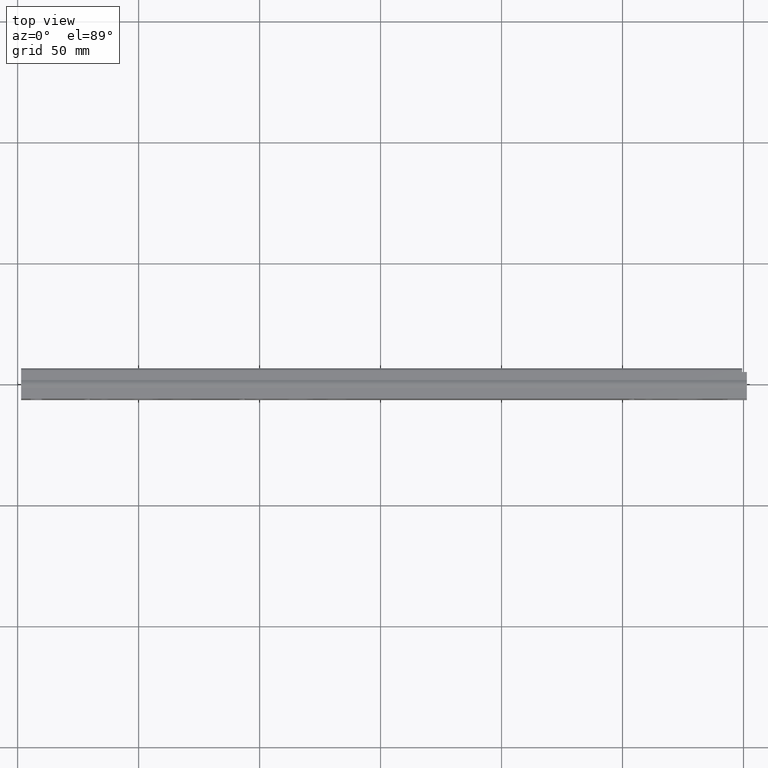
[diagram: clean part render]
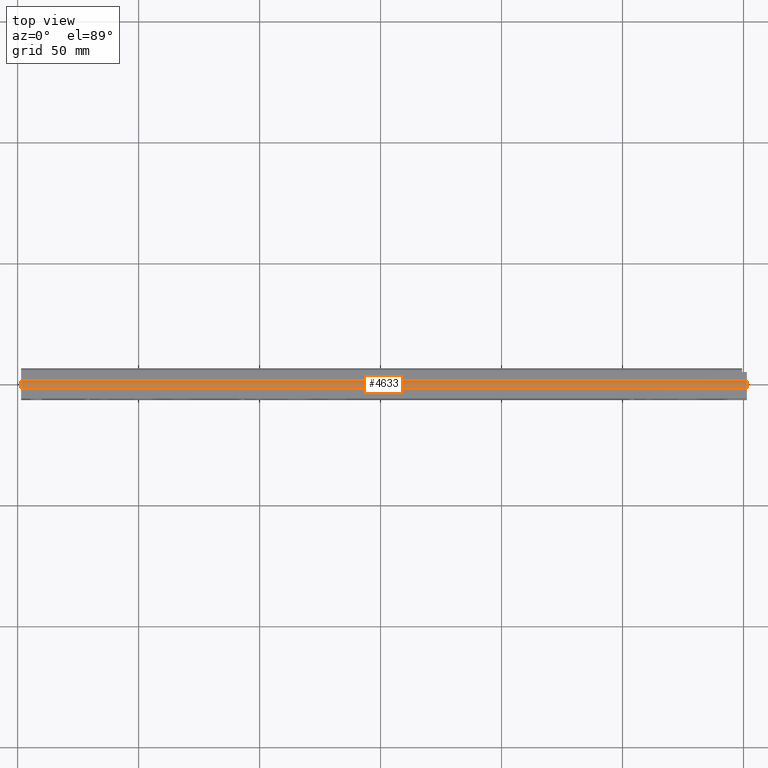
[diagram: same view with one face highlighted and labeled with its STEP entity id]
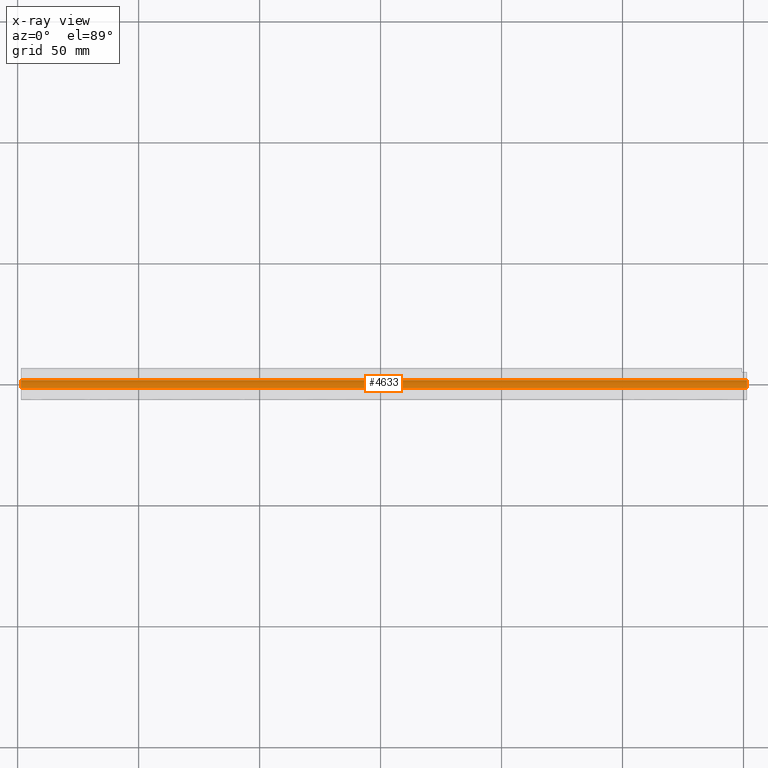
[diagram: x-ray of the same camera — body ghosted, the highlighted face saturated]
A machine part, top view. The second image highlights one B-rep face of the part: STEP entity #4633.
The next image is the same camera in x-ray: the body ghosted, the highlighted face saturated — about 0% of this face is hidden behind the body in this view.
In plain terms, the highlighted cylindrical surface (edge-blend (fillet) strip) has radius 2.9725 mm, axis along (1, 0, 0).
Its self-contained STEP definition (entity closure, byte-faithful):
#93=CYLINDRICAL_SURFACE('',#4964,2.9725);
#308=FACE_OUTER_BOUND('',#581,.T.);
#581=EDGE_LOOP('',(#3624,#3625,#3626,#3627));
#974=LINE('',#7187,#1464);
#975=LINE('',#7189,#1465);
#1464=VECTOR('',#5804,300.);
#1465=VECTOR('',#5807,300.);
#1809=CIRCLE('',#4878,2.9725);
#1814=CIRCLE('',#4961,2.9725);
#2100=VERTEX_POINT('',#6980);
#2101=VERTEX_POINT('',#6982);
#2118=VERTEX_POINT('',#7169);
#2119=VERTEX_POINT('',#7171);
#2573=EDGE_CURVE('',#2100,#2101,#1809,.T.);
#2666=EDGE_CURVE('',#2118,#2119,#1814,.T.);
#2674=EDGE_CURVE('',#2118,#2101,#974,.T.);
#2675=EDGE_CURVE('',#2119,#2100,#975,.T.);
#3624=ORIENTED_EDGE('',*,*,#2674,.T.);
#3625=ORIENTED_EDGE('',*,*,#2573,.F.);
#3626=ORIENTED_EDGE('',*,*,#2675,.F.);
#3627=ORIENTED_EDGE('',*,*,#2666,.F.);
#4633=ADVANCED_FACE('',(#308),#93,.T.);
#4878=AXIS2_PLACEMENT_3D('',#6983,#5538,#5539);
#4961=AXIS2_PLACEMENT_3D('',#7172,#5792,#5793);
#4964=AXIS2_PLACEMENT_3D('',#7188,#5805,#5806);
#5538=DIRECTION('center_axis',(1.,0.,0.));
#5539=DIRECTION('ref_axis',(0.,0.555088309503784,0.83179142136249));
#5792=DIRECTION('center_axis',(-1.,0.,0.));
#5793=DIRECTION('ref_axis',(0.,0.555088309503784,0.83179142136249));
#5804=DIRECTION('',(1.,0.,0.));
#5805=DIRECTION('center_axis',(1.,0.,0.));
#5806=DIRECTION('ref_axis',(0.,0.555088309503784,0.83179142136249));
#5807=DIRECTION('',(1.,0.,0.));
#6980=CARTESIAN_POINT('',(150.,7.65,17.));
#6982=CARTESIAN_POINT('',(150.,4.35000000000001,17.));
#6983=CARTESIAN_POINT('Origin',(150.,6.00000000000001,14.5275));
#7169=CARTESIAN_POINT('',(-150.,4.35000000000001,17.));
#7171=CARTESIAN_POINT('',(-150.,7.65,17.));
#7172=CARTESIAN_POINT('Origin',(-150.,6.00000000000001,14.5275));
#7187=CARTESIAN_POINT('',(0.,4.35000000000001,17.));
#7188=CARTESIAN_POINT('Origin',(0.,6.00000000000001,14.5275));
#7189=CARTESIAN_POINT('',(0.,7.65,17.));